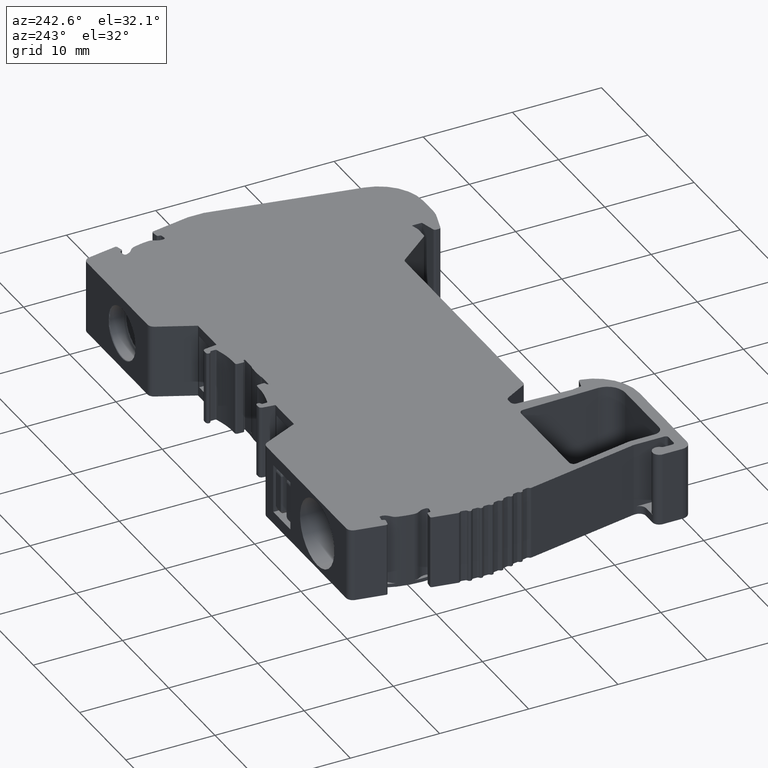
[diagram: clean part render]
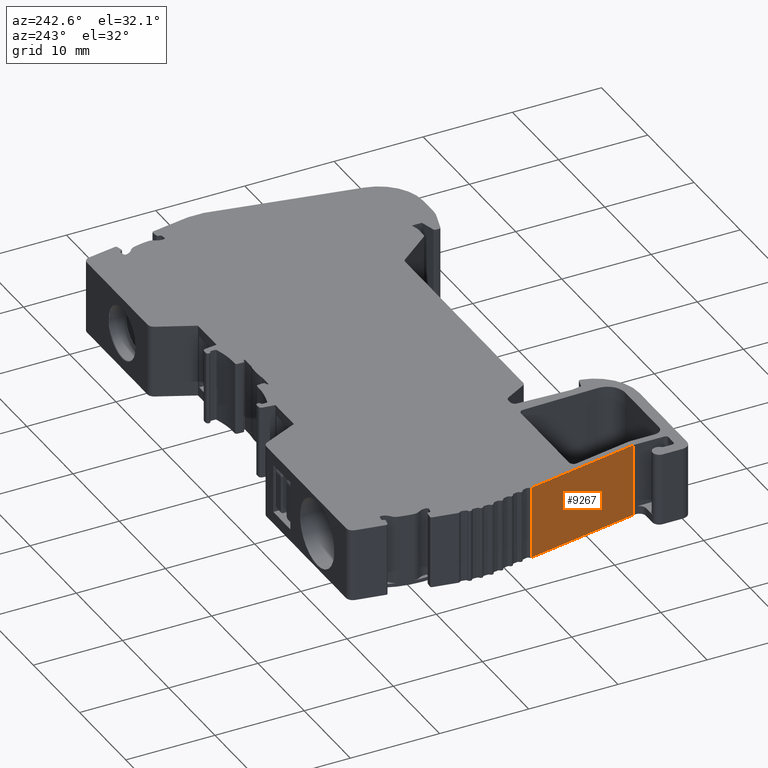
[diagram: same view with one face highlighted and labeled with its STEP entity id]
A machine part, auxiliary view. The second image highlights one B-rep face of the part: STEP entity #9267.
In plain terms, the highlighted planar face has unit normal (-0.9823, -0.1874, 0).
Its self-contained STEP definition (entity closure, byte-faithful):
#518 = CARTESIAN_POINT ( 'NONE',  ( -204.0624974952380057, 64.83542437277829151, 8.200000000000001066 ) ) ;
#976 = DIRECTION ( 'NONE',  ( 0.0000000000000000000, 0.0000000000000000000, -1.000000000000000000 ) ) ;
#1236 = FACE_OUTER_BOUND ( 'NONE', #5473, .T. ) ;
#1295 = DIRECTION ( 'NONE',  ( -0.9822811893269833838, -0.1874130867745555928, 0.0000000000000000000 ) ) ;
#1329 = AXIS2_PLACEMENT_3D ( 'NONE', #8662, #1295, #2268 ) ;
#1676 = LINE ( 'NONE', #6990, #10966 ) ;
#1924 = VECTOR ( 'NONE', #9575, 1000.000000000000000 ) ;
#2093 = ORIENTED_EDGE ( 'NONE', *, *, #9333, .F. ) ;
#2207 = LINE ( 'NONE', #5893, #1924 ) ;
#2268 = DIRECTION ( 'NONE',  ( 0.1874130867745555928, -0.9822811893269833838, 0.0000000000000000000 ) ) ;
#2645 = VERTEX_POINT ( 'NONE', #9596 ) ;
#2707 = ORIENTED_EDGE ( 'NONE', *, *, #5865, .T. ) ;
#2792 = LINE ( 'NONE', #9310, #9733 ) ;
#3174 = VERTEX_POINT ( 'NONE', #518 ) ;
#3925 = EDGE_CURVE ( 'NONE', #6063, #2645, #1676, .T. ) ;
#4283 = EDGE_CURVE ( 'NONE', #3174, #7029, #7625, .T. ) ;
#4927 = ORIENTED_EDGE ( 'NONE', *, *, #4283, .T. ) ;
#5428 = ORIENTED_EDGE ( 'NONE', *, *, #3925, .F. ) ;
#5473 = EDGE_LOOP ( 'NONE', ( #5428, #2093, #4927, #2707 ) ) ;
#5576 = VECTOR ( 'NONE', #9612, 1000.000000000000227 ) ;
#5865 = EDGE_CURVE ( 'NONE', #7029, #2645, #2792, .T. ) ;
#5893 = CARTESIAN_POINT ( 'NONE',  ( -204.0624974952380057, 64.83542437277829151, 8.200000000000001066 ) ) ;
#6063 = VERTEX_POINT ( 'NONE', #11769 ) ;
#6273 = DIRECTION ( 'NONE',  ( -0.1874130867745555373, 0.9822811893269832728, 0.0000000000000000000 ) ) ;
#6790 = PLANE ( 'NONE',  #1329 ) ;
#6990 = CARTESIAN_POINT ( 'NONE',  ( -184.9593690536230213, -35.28908693239230132, 0.0000000000000000000 ) ) ;
#7029 = VERTEX_POINT ( 'NONE', #10263 ) ;
#7625 = LINE ( 'NONE', #10338, #5576 ) ;
#8662 = CARTESIAN_POINT ( 'NONE',  ( -184.9593690536230213, -35.28908693239230132, 8.200000000000001066 ) ) ;
#9267 = ADVANCED_FACE ( 'NONE', ( #1236 ), #6790, .T. ) ;
#9310 = CARTESIAN_POINT ( 'NONE',  ( -206.4799320038000019, 77.50583328102649716, 8.200000000000001066 ) ) ;
#9333 = EDGE_CURVE ( 'NONE', #3174, #6063, #2207, .T. ) ;
#9575 = DIRECTION ( 'NONE',  ( 0.0000000000000000000, 0.0000000000000000000, -1.000000000000000000 ) ) ;
#9596 = CARTESIAN_POINT ( 'NONE',  ( -206.4799320038000019, 77.50583328102649716, 0.0000000000000000000 ) ) ;
#9612 = DIRECTION ( 'NONE',  ( -0.1874130867745555373, 0.9822811893269832728, 0.0000000000000000000 ) ) ;
#9733 = VECTOR ( 'NONE', #976, 1000.000000000000000 ) ;
#10263 = CARTESIAN_POINT ( 'NONE',  ( -206.4799320038000019, 77.50583328102649716, 8.200000000000001066 ) ) ;
#10338 = CARTESIAN_POINT ( 'NONE',  ( -184.9593690536230213, -35.28908693239230132, 8.200000000000001066 ) ) ;
#10966 = VECTOR ( 'NONE', #6273, 1000.000000000000227 ) ;
#11769 = CARTESIAN_POINT ( 'NONE',  ( -204.0624974952380057, 64.83542437277829151, 0.0000000000000000000 ) ) ;